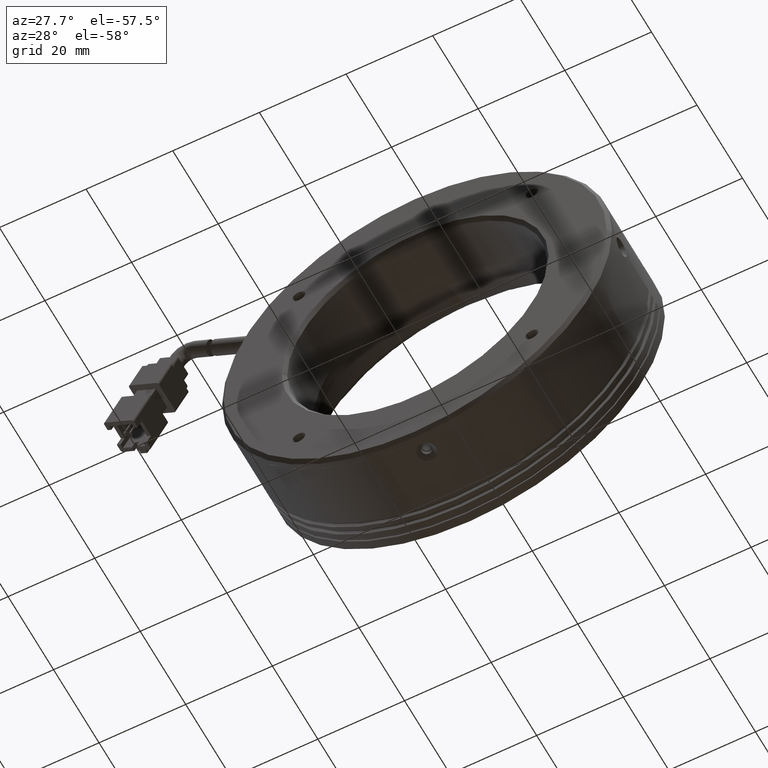
[diagram: clean part render]
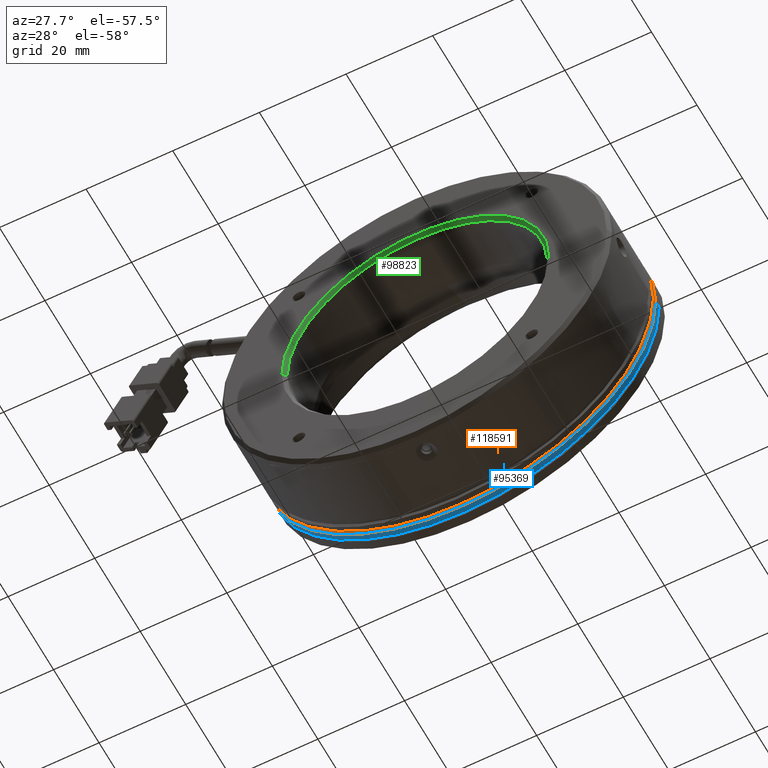
[diagram: same view with three faces highlighted in distinct colors, each labeled with its STEP entity id]
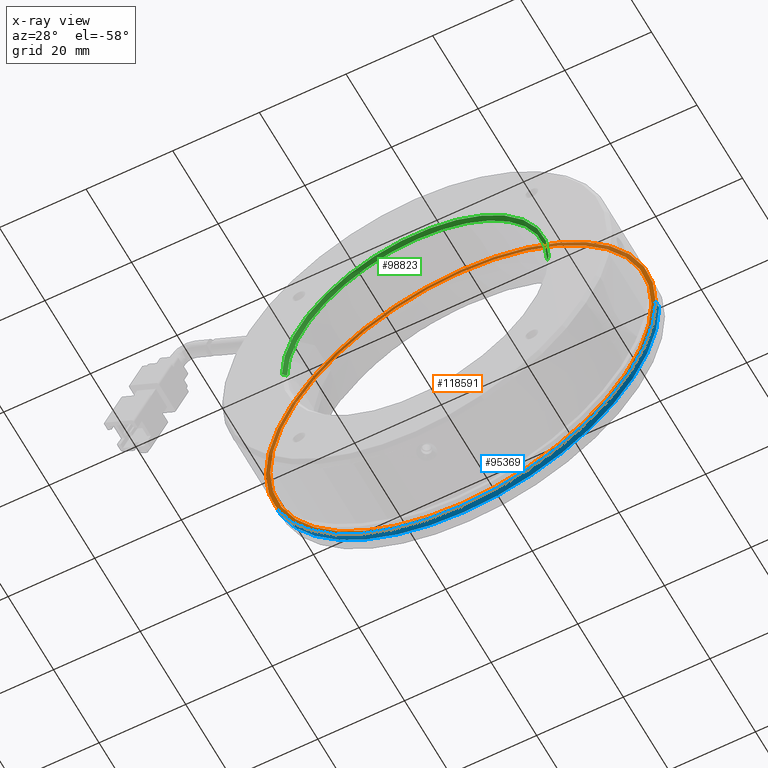
[diagram: x-ray of the same camera — body ghosted, the three highlighted faces saturated]
A machine part, auxiliary view with three faces highlighted in distinct colors.
The next image is the same camera in x-ray (body ghosted, the three faces saturated) — at least one of them is partly hidden behind the body in this view.
Their STEP definitions:

[orange] entity #118591 — the highlighted planar face has unit normal (0, 1, 0).
#2854 = CIRCLE ( 'NONE', #92205, 45.00000000000000700 ) ;
#12926 = CARTESIAN_POINT ( 'NONE',  ( -53.62332752538289800, 24.97360433553890500, 1.057097118173366800E-014 ) ) ;
#14725 = CARTESIAN_POINT ( 'NONE',  ( -8.623327525382890700, 24.97360433553890500, 1.057097118173366800E-014 ) ) ;
#19077 = EDGE_CURVE ( 'NONE', #69157, #74525, #31712, .T. ) ;
#24100 = EDGE_CURVE ( 'NONE', #74525, #69157, #2854, .T. ) ;
#24468 = DIRECTION ( 'NONE',  ( -1.000000000000000000, 0.0000000000000000000, 0.0000000000000000000 ) ) ;
#26089 = CARTESIAN_POINT ( 'NONE',  ( -8.623327525382890700, 24.97360433553890500, 1.057097118173366800E-014 ) ) ;
#26654 = DIRECTION ( 'NONE',  ( -0.0000000000000000000, 1.000000000000000000, -0.0000000000000000000 ) ) ;
#31712 = CIRCLE ( 'NONE', #99570, 45.00000000000000700 ) ;
#32598 = PLANE ( 'NONE',  #72429 ) ;
#33023 = DIRECTION ( 'NONE',  ( 0.0000000000000000000, 1.000000000000000000, 0.0000000000000000000 ) ) ;
#35727 = DIRECTION ( 'NONE',  ( -1.000000000000000000, 0.0000000000000000000, 0.0000000000000000000 ) ) ;
#40335 = CARTESIAN_POINT ( 'NONE',  ( 35.37667247461712300, 24.97360433553890500, 1.595941709798202400E-014 ) ) ;
#41644 = CARTESIAN_POINT ( 'NONE',  ( -8.623327525382890700, 24.97360433553890500, 1.057097118173366800E-014 ) ) ;
#43933 = EDGE_LOOP ( 'NONE', ( #71064, #85569 ) ) ;
#46222 = VERTEX_POINT ( 'NONE', #40335 ) ;
#51272 = DIRECTION ( 'NONE',  ( -1.000000000000000000, 0.0000000000000000000, 0.0000000000000000000 ) ) ;
#55424 = AXIS2_PLACEMENT_3D ( 'NONE', #14725, #82355, #24468 ) ;
#55884 = FACE_OUTER_BOUND ( 'NONE', #43933, .T. ) ;
#57003 = CIRCLE ( 'NONE', #75196, 44.00000000000001400 ) ;
#58426 = CARTESIAN_POINT ( 'NONE',  ( -52.62332752538290500, 24.97360433553890500, 1.057097118173366800E-014 ) ) ;
#60990 = CIRCLE ( 'NONE', #55424, 44.00000000000001400 ) ;
#66113 = ORIENTED_EDGE ( 'NONE', *, *, #69370, .F. ) ;
#69157 = VERTEX_POINT ( 'NONE', #12926 ) ;
#69370 = EDGE_CURVE ( 'NONE', #46222, #105891, #57003, .T. ) ;
#71064 = ORIENTED_EDGE ( 'NONE', *, *, #19077, .F. ) ;
#72429 = AXIS2_PLACEMENT_3D ( 'NONE', #90924, #33023, #100678 ) ;
#74525 = VERTEX_POINT ( 'NONE', #105982 ) ;
#75196 = AXIS2_PLACEMENT_3D ( 'NONE', #26089, #93703, #35727 ) ;
#82355 = DIRECTION ( 'NONE',  ( 0.0000000000000000000, -1.000000000000000000, 0.0000000000000000000 ) ) ;
#84492 = CARTESIAN_POINT ( 'NONE',  ( -8.623327525382890700, 24.97360433553890500, 1.057097118173366800E-014 ) ) ;
#85569 = ORIENTED_EDGE ( 'NONE', *, *, #24100, .F. ) ;
#90924 = CARTESIAN_POINT ( 'NONE',  ( -8.623327525382890700, 24.97360433553890500, 45.00000000000002100 ) ) ;
#92205 = AXIS2_PLACEMENT_3D ( 'NONE', #84492, #26654, #94263 ) ;
#93648 = EDGE_LOOP ( 'NONE', ( #118711, #66113 ) ) ;
#93696 = EDGE_CURVE ( 'NONE', #105891, #46222, #60990, .T. ) ;
#93703 = DIRECTION ( 'NONE',  ( 0.0000000000000000000, -1.000000000000000000, 0.0000000000000000000 ) ) ;
#94263 = DIRECTION ( 'NONE',  ( -1.000000000000000000, 0.0000000000000000000, 0.0000000000000000000 ) ) ;
#99570 = AXIS2_PLACEMENT_3D ( 'NONE', #41644, #109284, #51272 ) ;
#100678 = DIRECTION ( 'NONE',  ( -1.000000000000000000, 0.0000000000000000000, 0.0000000000000000000 ) ) ;
#104397 = FACE_BOUND ( 'NONE', #93648, .T. ) ;
#105891 = VERTEX_POINT ( 'NONE', #58426 ) ;
#105982 = CARTESIAN_POINT ( 'NONE',  ( 36.37667247461711600, 24.97360433553890500, 1.608188177789675600E-014 ) ) ;
#109284 = DIRECTION ( 'NONE',  ( -0.0000000000000000000, 1.000000000000000000, -0.0000000000000000000 ) ) ;
#118591 = ADVANCED_FACE ( 'NONE', ( #104397, #55884 ), #32598, .F. ) ;
#118711 = ORIENTED_EDGE ( 'NONE', *, *, #93696, .F. ) ;

[blue] entity #95369 — the highlighted cylindrical surface (partial cylindrical patch) has radius 45 mm, axis along (-0, 1, -0).
#2854 = CIRCLE ( 'NONE', #92205, 45.00000000000000700 ) ;
#9021 = VERTEX_POINT ( 'NONE', #85525 ) ;
#11013 = CARTESIAN_POINT ( 'NONE',  ( 36.37667247461711600, 6.973604335538903200, 1.608188177789675600E-014 ) ) ;
#12926 = CARTESIAN_POINT ( 'NONE',  ( -53.62332752538289800, 24.97360433553890500, 1.057097118173366800E-014 ) ) ;
#20786 = DIRECTION ( 'NONE',  ( -0.0000000000000000000, 1.000000000000000000, -0.0000000000000000000 ) ) ;
#22335 = DIRECTION ( 'NONE',  ( -1.000000000000000000, 0.0000000000000000000, 0.0000000000000000000 ) ) ;
#23357 = EDGE_CURVE ( 'NONE', #69157, #80629, #40731, .T. ) ;
#24100 = EDGE_CURVE ( 'NONE', #74525, #69157, #2854, .T. ) ;
#26654 = DIRECTION ( 'NONE',  ( -0.0000000000000000000, 1.000000000000000000, -0.0000000000000000000 ) ) ;
#28596 = VECTOR ( 'NONE', #119213, 1000.000000000000000 ) ;
#29356 = ORIENTED_EDGE ( 'NONE', *, *, #85765, .T. ) ;
#40694 = DIRECTION ( 'NONE',  ( 0.0000000000000000000, -1.000000000000000000, 0.0000000000000000000 ) ) ;
#40731 = LINE ( 'NONE', #61155, #28596 ) ;
#44037 = CYLINDRICAL_SURFACE ( 'NONE', #55821, 45.00000000000000700 ) ;
#52273 = CARTESIAN_POINT ( 'NONE',  ( -53.62332752538289800, 26.47360433553891200, 1.608188177789675600E-014 ) ) ;
#55786 = EDGE_LOOP ( 'NONE', ( #102921, #99523, #94023, #29356 ) ) ;
#55821 = AXIS2_PLACEMENT_3D ( 'NONE', #109070, #89536, #22335 ) ;
#61155 = CARTESIAN_POINT ( 'NONE',  ( -53.62332752538289800, 6.973604335538903200, 1.057097118173366800E-014 ) ) ;
#69157 = VERTEX_POINT ( 'NONE', #12926 ) ;
#69623 = LINE ( 'NONE', #11013, #118146 ) ;
#74525 = VERTEX_POINT ( 'NONE', #105982 ) ;
#74727 = AXIS2_PLACEMENT_3D ( 'NONE', #98542, #40694, #108356 ) ;
#80629 = VERTEX_POINT ( 'NONE', #52273 ) ;
#84492 = CARTESIAN_POINT ( 'NONE',  ( -8.623327525382890700, 24.97360433553890500, 1.057097118173366800E-014 ) ) ;
#85525 = CARTESIAN_POINT ( 'NONE',  ( 36.37667247461711600, 26.47360433553891200, 1.057097118173366800E-014 ) ) ;
#85765 = EDGE_CURVE ( 'NONE', #80629, #9021, #94939, .T. ) ;
#89536 = DIRECTION ( 'NONE',  ( -0.0000000000000000000, 1.000000000000000000, -0.0000000000000000000 ) ) ;
#92205 = AXIS2_PLACEMENT_3D ( 'NONE', #84492, #26654, #94263 ) ;
#94023 = ORIENTED_EDGE ( 'NONE', *, *, #23357, .T. ) ;
#94263 = DIRECTION ( 'NONE',  ( -1.000000000000000000, 0.0000000000000000000, 0.0000000000000000000 ) ) ;
#94939 = CIRCLE ( 'NONE', #74727, 45.00000000000000700 ) ;
#95369 = ADVANCED_FACE ( 'NONE', ( #104608 ), #44037, .T. ) ;
#98542 = CARTESIAN_POINT ( 'NONE',  ( -8.623327525382890700, 26.47360433553891200, 1.057097118173366800E-014 ) ) ;
#99523 = ORIENTED_EDGE ( 'NONE', *, *, #24100, .T. ) ;
#102921 = ORIENTED_EDGE ( 'NONE', *, *, #118465, .F. ) ;
#104608 = FACE_OUTER_BOUND ( 'NONE', #55786, .T. ) ;
#105982 = CARTESIAN_POINT ( 'NONE',  ( 36.37667247461711600, 24.97360433553890500, 1.608188177789675600E-014 ) ) ;
#108356 = DIRECTION ( 'NONE',  ( -1.000000000000000000, 0.0000000000000000000, 0.0000000000000000000 ) ) ;
#109070 = CARTESIAN_POINT ( 'NONE',  ( -8.623327525382890700, 6.973604335538903200, 1.057097118173366800E-014 ) ) ;
#118146 = VECTOR ( 'NONE', #20786, 1000.000000000000000 ) ;
#118465 = EDGE_CURVE ( 'NONE', #74525, #9021, #69623, .T. ) ;
#119213 = DIRECTION ( 'NONE',  ( -0.0000000000000000000, 1.000000000000000000, -0.0000000000000000000 ) ) ;

[green] entity #98823 — the highlighted conical surface has half-angle 45 deg.
#743 = CARTESIAN_POINT ( 'NONE',  ( -39.42332752538288100, 4.973604335538896100, 3.771912141373847600E-015 ) ) ;
#1572 = AXIS2_PLACEMENT_3D ( 'NONE', #47592, #115357, #57320 ) ;
#3644 = VERTEX_POINT ( 'NONE', #11063 ) ;
#6689 = EDGE_CURVE ( 'NONE', #84139, #107773, #82289, .T. ) ;
#7505 = EDGE_CURVE ( 'NONE', #3644, #119726, #56096, .T. ) ;
#8562 = CARTESIAN_POINT ( 'NONE',  ( -8.623327525382890700, 5.773604335538893300, 0.0000000000000000000 ) ) ;
#11063 = CARTESIAN_POINT ( 'NONE',  ( 21.37667247461710900, 5.773604335538893300, 0.0000000000000000000 ) ) ;
#16720 = CARTESIAN_POINT ( 'NONE',  ( -39.42332752538288100, 4.973604335538896100, 3.771912141373847600E-015 ) ) ;
#18355 = DIRECTION ( 'NONE',  ( 0.0000000000000000000, 0.0000000000000000000, -1.000000000000000000 ) ) ;
#23630 = VECTOR ( 'NONE', #113997, 1000.000000000000000 ) ;
#24834 = CARTESIAN_POINT ( 'NONE',  ( -8.623327525382890700, 5.773604335538893300, 0.0000000000000000000 ) ) ;
#30117 = ORIENTED_EDGE ( 'NONE', *, *, #36762, .F. ) ;
#31602 = DIRECTION ( 'NONE',  ( 0.7071067811865474600, -0.7071067811865475700, 0.0000000000000000000 ) ) ;
#34517 = DIRECTION ( 'NONE',  ( 0.0000000000000000000, 0.0000000000000000000, -1.000000000000000000 ) ) ;
#35418 = DIRECTION ( 'NONE',  ( -5.632219077846778200E-017, -1.000000000000000000, 0.0000000000000000000 ) ) ;
#36762 = EDGE_CURVE ( 'NONE', #107773, #41648, #75046, .T. ) ;
#37650 = ORIENTED_EDGE ( 'NONE', *, *, #7505, .T. ) ;
#41648 = VERTEX_POINT ( 'NONE', #743 ) ;
#46821 = CIRCLE ( 'NONE', #65628, 30.00000000000000000 ) ;
#47592 = CARTESIAN_POINT ( 'NONE',  ( -8.623327525382890700, 4.973604335538894400, 0.0000000000000000000 ) ) ;
#49856 = FACE_OUTER_BOUND ( 'NONE', #67064, .T. ) ;
#51085 = EDGE_CURVE ( 'NONE', #119726, #41648, #51992, .T. ) ;
#51992 = CIRCLE ( 'NONE', #1572, 30.79999999999999700 ) ;
#56096 = LINE ( 'NONE', #109415, #81811 ) ;
#57320 = DIRECTION ( 'NONE',  ( 1.000000000000000000, -5.632219077846777000E-017, 0.0000000000000000000 ) ) ;
#57890 = ORIENTED_EDGE ( 'NONE', *, *, #51085, .T. ) ;
#65628 = AXIS2_PLACEMENT_3D ( 'NONE', #8562, #76221, #18355 ) ;
#67064 = EDGE_LOOP ( 'NONE', ( #30117, #76083, #91408, #37650, #57890 ) ) ;
#75046 = LINE ( 'NONE', #16720, #23630 ) ;
#76083 = ORIENTED_EDGE ( 'NONE', *, *, #6689, .F. ) ;
#76221 = DIRECTION ( 'NONE',  ( 0.0000000000000000000, -1.000000000000000000, 0.0000000000000000000 ) ) ;
#77394 = CARTESIAN_POINT ( 'NONE',  ( -8.623327525382887200, 5.773604335538893300, 30.00000000000000000 ) ) ;
#77474 = AXIS2_PLACEMENT_3D ( 'NONE', #83607, #35418, #93818 ) ;
#80643 = CARTESIAN_POINT ( 'NONE',  ( 22.17667247461710600, 4.973604335538893500, 0.0000000000000000000 ) ) ;
#81811 = VECTOR ( 'NONE', #31602, 1000.000000000000000 ) ;
#82289 = CIRCLE ( 'NONE', #116080, 30.00000000000000000 ) ;
#83607 = CARTESIAN_POINT ( 'NONE',  ( -8.623327525382890700, 4.973604335538894400, 0.0000000000000000000 ) ) ;
#84139 = VERTEX_POINT ( 'NONE', #77394 ) ;
#91408 = ORIENTED_EDGE ( 'NONE', *, *, #112298, .F. ) ;
#92461 = DIRECTION ( 'NONE',  ( 0.0000000000000000000, -1.000000000000000000, 0.0000000000000000000 ) ) ;
#93818 = DIRECTION ( 'NONE',  ( 1.000000000000000000, -5.632219077846777000E-017, 0.0000000000000000000 ) ) ;
#98823 = ADVANCED_FACE ( 'NONE', ( #49856 ), #111947, .F. ) ;
#107773 = VERTEX_POINT ( 'NONE', #122136 ) ;
#109415 = CARTESIAN_POINT ( 'NONE',  ( 22.17667247461710600, 4.973604335538893500, 0.0000000000000000000 ) ) ;
#111947 = CONICAL_SURFACE ( 'NONE', #77474, 30.79999999999999700, 0.7853981633974482800 ) ;
#112298 = EDGE_CURVE ( 'NONE', #3644, #84139, #46821, .T. ) ;
#113997 = DIRECTION ( 'NONE',  ( -0.7071067811865474600, -0.7071067811865475700, 8.659560562354931600E-017 ) ) ;
#115357 = DIRECTION ( 'NONE',  ( -5.632219077846778200E-017, -1.000000000000000000, 0.0000000000000000000 ) ) ;
#116080 = AXIS2_PLACEMENT_3D ( 'NONE', #24834, #92461, #34517 ) ;
#119726 = VERTEX_POINT ( 'NONE', #80643 ) ;
#122136 = CARTESIAN_POINT ( 'NONE',  ( -38.62332752538289100, 5.773604335538893300, 3.722926269407954200E-015 ) ) ;